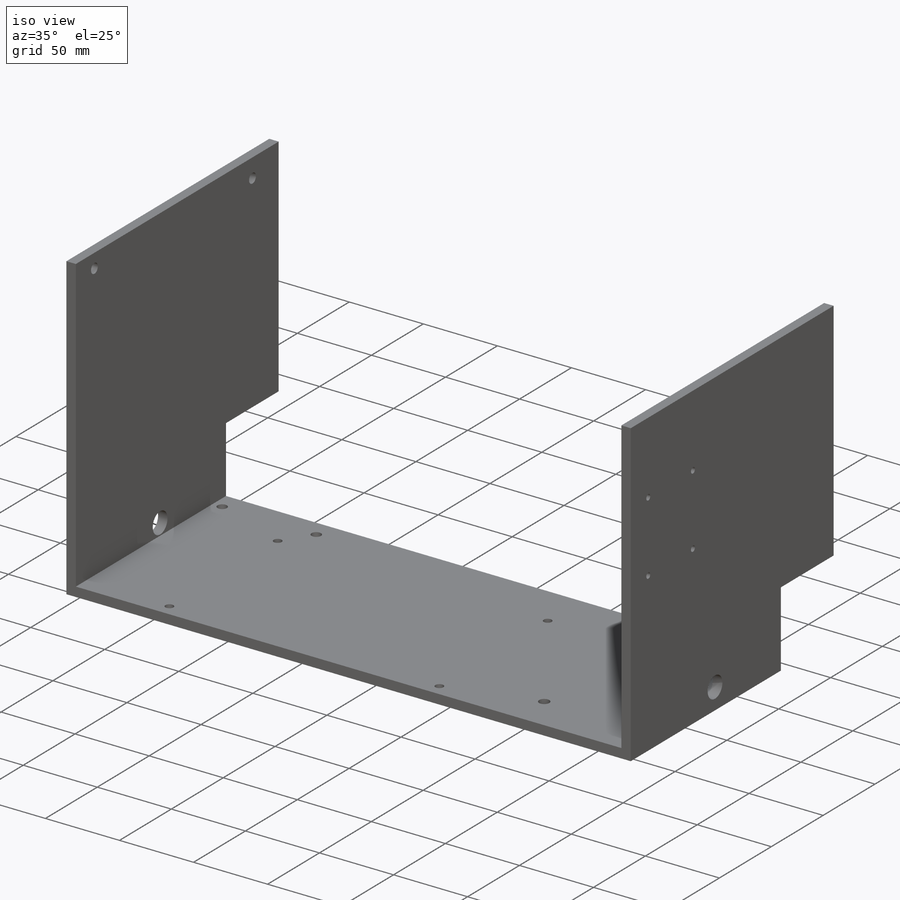
[diagram: iso view]
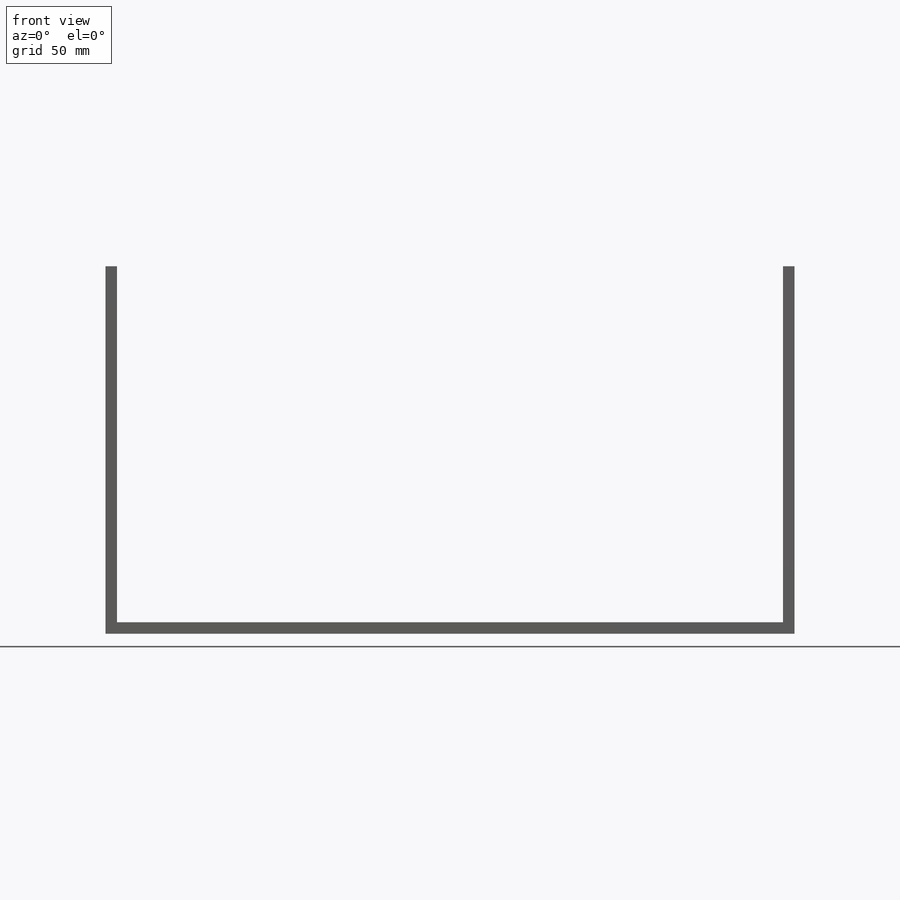
[diagram: front view]
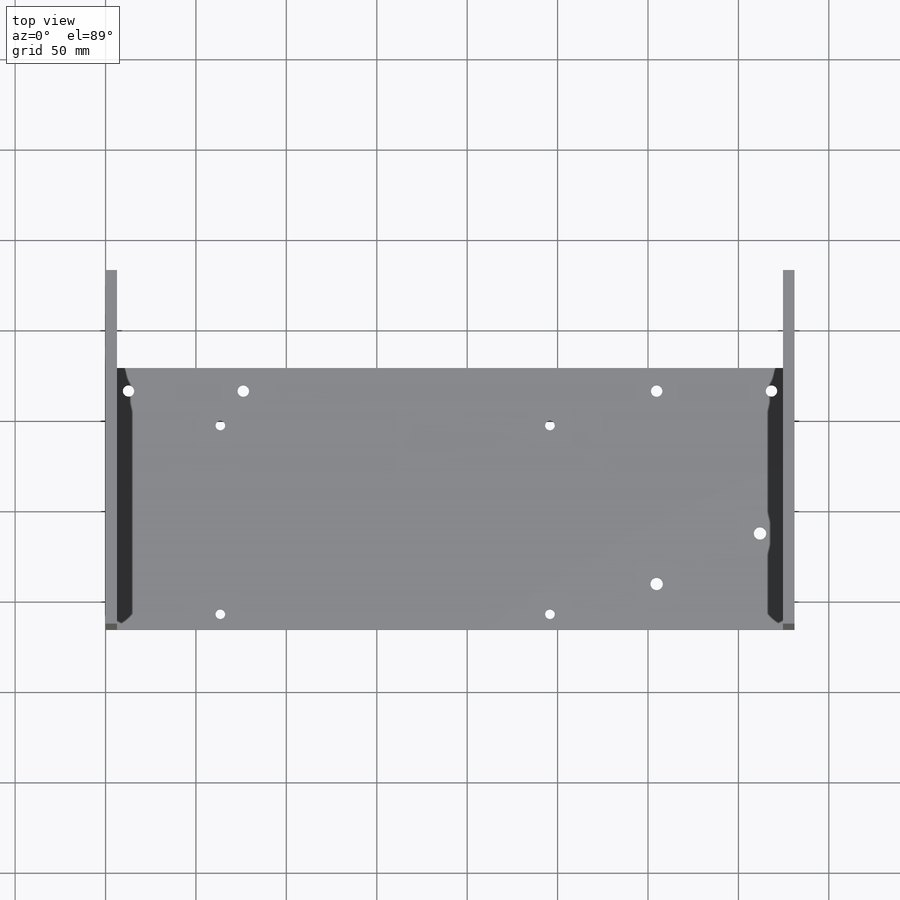
[diagram: top view]
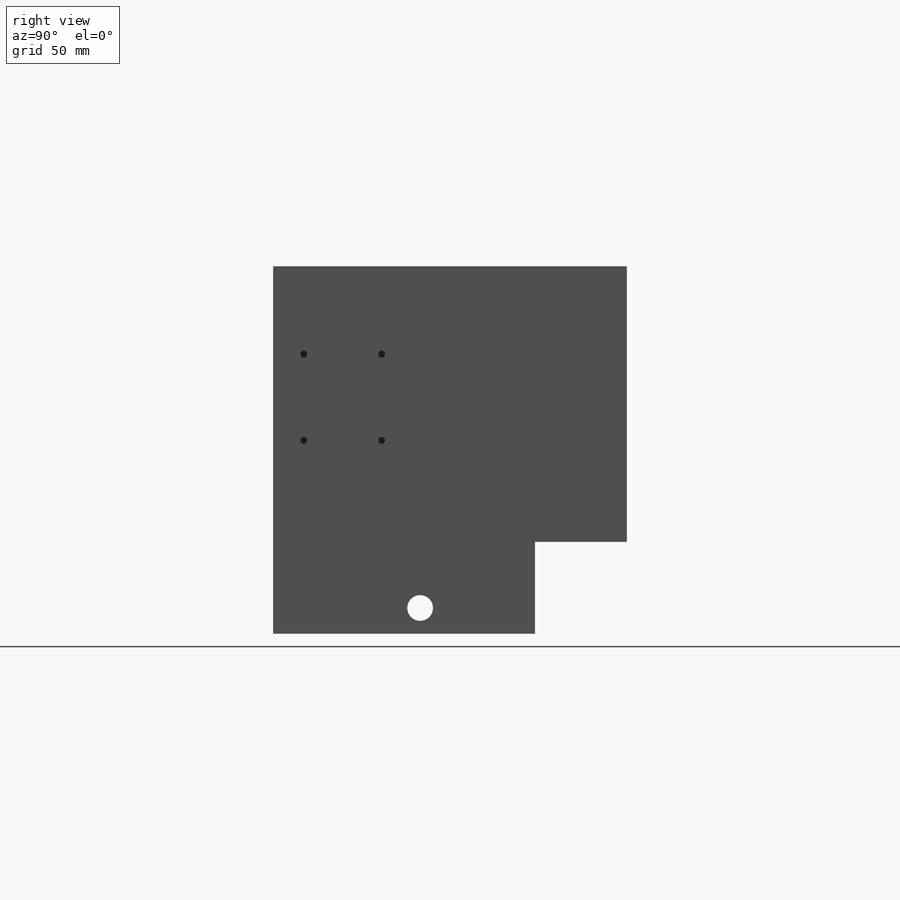
[diagram: right view]
SOLIDWORKS PART (.sldprt)
format: sldprt  version: not decoded by parser v0  size: 1,330,176 bytes
history: native  units: mm
features: sketch x32, cut_extrude x18, extrude x14, material x1 (+13 scaffold rows collapsed)
feature tree (78):
  scaffold x13  (default folders/planes/origin — collapsed)
  material  "Material <not specified>"
  sketch  "Sketch1"  dims[D1=429.26mm D2=381.0mm]
  extrude  "Boss-Extrude1"  Depth=6.35mm
  sketch  "Sketch2"  dims[D1=254.0mm D2=203.2mm D3=0.0mm D4=63.5mm]
  cut_extrude  "Cut-Extrude1"  Depth=6.35mm
  sketch  "Sketch3"  dims[D1=73.66mm D2=381.0mm]
  cut_extrude  "Cut-Extrude2"  Depth=6.35mm
  sketch  "Sketch4"  dims[D1=254.0mm D2=0.0mm D3=0.0mm]
  cut_extrude  "Cut-Extrude3"  Depth=73.66mm
  sketch  "Sketch6"  dims[D1=6.35mm D2=195.58mm]
  extrude  "Boss-Extrude2"  Depth=171.45mm
  sketch  "Sketch7"  dims[D1=195.58mm D2=6.35mm]
  extrude  "Boss-Extrude3"  Depth=158.75mm
  sketch  "Sketch8"
  extrude  "Boss-Extrude4"  Depth=50.8mm
  sketch  "Sketch9"
  cut_extrude  "Cut-Extrude4"  Depth=50.8mm
  sketch  "Sketch10"
  extrude  "Boss-Extrude5"  Depth=50.8mm
  sketch  "Sketch11"
  cut_extrude  "Cut-Extrude5"  Depth=50.8mm
  sketch  "Sketch13"
  cut_extrude  "Cut-Extrude6"  Depth=50.8mm
  sketch  "Sketch14"
  cut_extrude  "Cut-Extrude7"  Depth=50.8mm
  sketch  "Sketch15"
  cut_extrude  "Cut-Extrude8"  Depth=50.8mm
  sketch  "Sketch16"
  extrude  "Boss-Extrude6"  Depth=25.4mm
  sketch  "Sketch17"
  extrude  "Boss-Extrude7"  Depth=19.05mm
  sketch  "Sketch19"  dims[D1=139.7mm D2=6.35mm]
  extrude  "Boss-Extrude8"  Depth=50.8mm
  sketch  "Sketch20"
  extrude  "Boss-Extrude9"  Depth=31.75mm
  sketch  "Sketch21"  dims[D1=139.7mm]
  extrude  "Boss-Extrude10"  Depth=50.8mm
  sketch  "Sketch22"
  extrude  "Boss-Extrude11"  Depth=50.8mm
  sketch  "Sketch23"
  extrude  "Boss-Extrude12"  Depth=12.7mm
  sketch  "Sketch24"
  extrude  "Boss-Extrude13"  Depth=12.7mm
  sketch  "Sketch26"
  cut_extrude  "Cut-Extrude9"  Depth=12.7mm
  sketch  "Sketch27"  dims[c1.D1=15.875mm c1.D2=14.2875mm c2.D1=7.874mm]
  cut_extrude  "Cut-Extrude12"  Depth=8.89mm
  sketch  "Sketch29"  dims[c1.D1=14.2875mm c1.D2=14.2875mm c1.D3=14.2875mm c1.D4=14.2875mm c2.D2=63.5mm c2.D3=~0.79375mm c2.D4=14.224mm]
  cut_extrude  "Cut-Extrude13"  Depth=8.89mm
  sketch  "Sketch31"  dims[c1.D1=6.35mm c1.D2=6.35mm c1.D3=6.35mm c1.D4=6.35mm c1.D5=6.35mm c1.D6=6.35mm c1.D7=6.35mm c1.D8=6.35mm c1.D9=6.35mm c1.D10=~12.33173mm c1.D11=6.35mm c1.D12=6.35mm c2.D2=12.7mm c2.D3=12.7mm c2.D5=12.7mm c2.D6=76.2mm c2.D8=12.7mm c2.D9=12.7mm c2.D10=12.7mm c2.D12=76.2mm]
  cut_extrude  "Cut-Extrude14"  Depth=12.7mm
  sketch  "Sketch36"  dims[c1.D1=3.81mm c1.D2=3.81mm c1.D3=3.81mm c1.D4=3.81mm c1.D5=3.81mm c1.D6=3.81mm c1.D7=3.81mm c1.D8=3.81mm c1.D9=3.81mm c1.D10=3.81mm c1.D11=3.81mm c1.D12=3.81mm c2.D2=~48.651153mm c2.D3=~59.971336mm c2.D4=~16.918336mm c2.D5=48.6488mm c2.D6=~16.918336mm c2.D10=96.4008mm c2.D11=~59.971336mm c2.D12=96.4008mm]
  cut_extrude  "Cut-Extrude17"  Depth=12.7mm
  sketch  "Sketch37"  dims[c1.D1=5.334mm c1.D2=5.334mm c1.D3=5.334mm c1.D4=5.334mm c1.D5=5.334mm c1.D6=5.334mm c1.D7=5.334mm c1.D8=5.334mm c1.D9=5.334mm c1.D10=5.334mm c1.D11=5.334mm c1.D12=5.334mm c1.D13=5.334mm c1.D14=5.334mm c1.D15=5.334mm c2.D14=5.334mm c2.D10=5.334mm c2.D15=5.334mm c2.D2=63.5mm c2.D4=63.5mm c2.D5=57.15mm c2.D6=104.394mm c2.D7=31.75mm c2.D9=182.2704mm c3.D10=14.986mm c3.D11=8.636mm c3.D13=31.75mm c3.D14=135.2296mm c3.D15=182.2704mm c4.D14=182.2704mm c4.D10=104.394mm c4.D15=8.636mm]
  cut_extrude  "Cut-Extrude18"  Depth=17.78mm
  sketch  "Sketch38"  dims[c1.D1=6.35mm c1.D2=6.858mm c1.D3=6.858mm c1.D4=6.35mm c1.D5=6.858mm c1.D6=6.858mm c1.D7=6.858mm c1.D8=6.858mm c1.D9=6.858mm c2.D2=76.2mm c2.D3=25.4mm c2.D5=27.94mm c2.D6=57.15mm c2.D7=12.7mm c2.D8=12.7mm c2.D9=12.7mm]
  cut_extrude  "Cut-Extrude19"  Depth=17.78mm
  sketch  "Sketch39"  dims[c1.D1=6.604mm c1.D2=6.35mm c1.D3=6.35mm c2.D1=12.7mm]
  cut_extrude  "Cut-Extrude20"  Depth=17.78mm
  sketch  "Sketch41"  dims[c1.D1=6.35mm c1.D2=10.033mm c1.D3=10.033mm c1.D4=6.35mm c1.D5=10.033mm c1.D6=10.033mm c1.D7=6.35mm c1.D8=10.033mm c1.D9=10.033mm c1.D10=6.35mm c1.D11=10.033mm c1.D12=10.033mm c2.D2=139.7508mm c2.D3=53.2892mm c2.D5=139.7508mm c2.D6=154.813mm c2.D8=6.4008mm c2.D9=154.813mm c2.D11=6.4008mm c2.D12=53.2892mm]
  cut_extrude  "Cut-Extrude21"  Depth=15.24mm
  sketch  "Sketch42"  dims[D1=6.604mm D2=6.604mm]
  cut_extrude  "Cut-Extrude22"  Depth=12.7mm
  sketch  "Sketch43"  dims[D1=6.35mm D2=6.604mm D3=6.35mm D4=6.604mm]
  extrude  "Boss-Extrude14"  Depth=6.35mm
decode coverage: 50 of 64 modeling features carry decoded parameters
note: ~ marks probable driven/reference dimensions
note: suppression state not decoded; provenance and decode notes live in map.json
